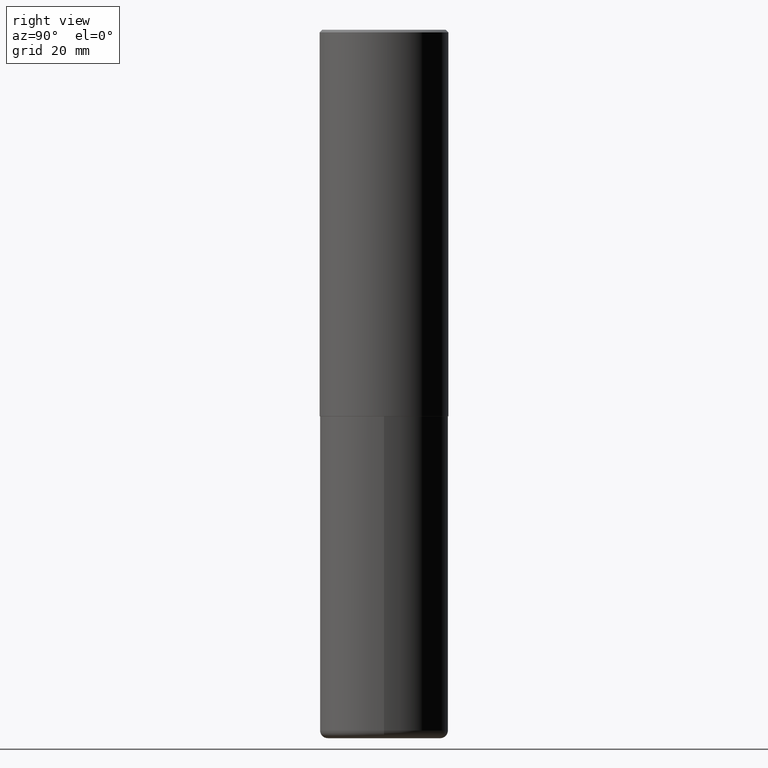
[diagram: clean part render]
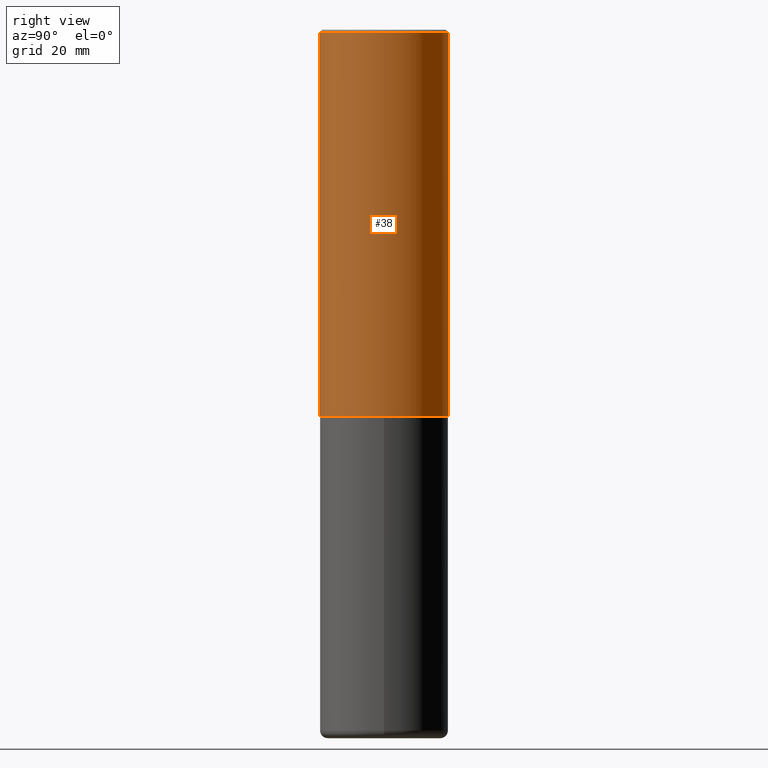
[diagram: same view with one face highlighted and labeled with its STEP entity id]
A machine part, right view. The second image highlights one B-rep face of the part: STEP entity #38.
In plain terms, the highlighted cylindrical surface (partial cylindrical patch) has radius 12.7 mm, axis along (-0, 0, 1).
Its self-contained STEP definition (entity closure, byte-faithful):
#3 = VERTEX_POINT ( 'NONE', #256 ) ;
#38 = ADVANCED_FACE ( 'NONE', ( #354 ), #390, .T. ) ;
#40 = EDGE_CURVE ( 'NONE', #222, #226, #84, .T. ) ;
#46 = DIRECTION ( 'NONE',  ( -2.446018302604025097E-29, 3.490694428695902798E-15, 1.000000000000000000 ) ) ;
#57 = CARTESIAN_POINT ( 'NONE',  ( 7.335608889509473609E-29, -1.046859259165901344E-14, -2.999000000000000554 ) ) ;
#80 = CARTESIAN_POINT ( 'NONE',  ( -3.491481338843061963E-15, -0.5000000000000107692, -2.998999999999998778 ) ) ;
#84 = LINE ( 'NONE', #271, #201 ) ;
#87 = DIRECTION ( 'NONE',  ( -2.446018302604025378E-29, 3.490694428695902798E-15, 1.000000000000000000 ) ) ;
#91 = CIRCLE ( 'NONE', #219, 0.5000000000000000000 ) ;
#101 = VERTEX_POINT ( 'NONE', #80 ) ;
#103 = CARTESIAN_POINT ( 'NONE',  ( 0.000000000000000000, 0.000000000000000000, 0.000000000000000000 ) ) ;
#118 = CARTESIAN_POINT ( 'NONE',  ( -3.491481338843133750E-15, -0.5000000000000001110, 1.745347214347951794E-15 ) ) ;
#129 = ORIENTED_EDGE ( 'NONE', *, *, #40, .T. ) ;
#136 = CIRCLE ( 'NONE', #257, 0.5000000000000003331 ) ;
#139 = EDGE_CURVE ( 'NONE', #3, #226, #91, .T. ) ;
#142 = CARTESIAN_POINT ( 'NONE',  ( 4.892036605208077240E-31, -6.981388857391842821E-17, -0.02000000000000010797 ) ) ;
#149 = LINE ( 'NONE', #118, #378 ) ;
#168 = EDGE_LOOP ( 'NONE', ( #262, #129, #194, #186 ) ) ;
#186 = ORIENTED_EDGE ( 'NONE', *, *, #211, .F. ) ;
#194 = ORIENTED_EDGE ( 'NONE', *, *, #139, .F. ) ;
#201 = VECTOR ( 'NONE', #46, 39.37007874015748143 ) ;
#211 = EDGE_CURVE ( 'NONE', #101, #3, #149, .T. ) ;
#212 = DIRECTION ( 'NONE',  ( -6.982962677686265922E-15, -1.000000000000000000, 3.491643216902136408E-15 ) ) ;
#219 = AXIS2_PLACEMENT_3D ( 'NONE', #142, #264, #212 ) ;
#222 = VERTEX_POINT ( 'NONE', #274 ) ;
#226 = VERTEX_POINT ( 'NONE', #315 ) ;
#230 = DIRECTION ( 'NONE',  ( -6.982962677686265922E-15, -1.000000000000000000, 3.490694428695902798E-15 ) ) ;
#244 = DIRECTION ( 'NONE',  ( -6.982962677686265922E-15, -1.000000000000000000, 3.278217592397113496E-15 ) ) ;
#256 = CARTESIAN_POINT ( 'NONE',  ( -3.430248998885764992E-15, -0.5000000000000001110, -0.01999999999999835937 ) ) ;
#257 = AXIS2_PLACEMENT_3D ( 'NONE', #57, #87, #244 ) ;
#262 = ORIENTED_EDGE ( 'NONE', *, *, #302, .T. ) ;
#264 = DIRECTION ( 'NONE',  ( -2.446018302604025378E-29, 3.490694428695902798E-15, 1.000000000000000000 ) ) ;
#271 = CARTESIAN_POINT ( 'NONE',  ( 3.552713678800501718E-15, 0.5000000000000001110, -1.745347214347951794E-15 ) ) ;
#274 = CARTESIAN_POINT ( 'NONE',  ( 3.552713678800539584E-15, 0.4999999999999898970, -2.999000000000001886 ) ) ;
#302 = EDGE_CURVE ( 'NONE', #101, #222, #136, .T. ) ;
#315 = CARTESIAN_POINT ( 'NONE',  ( 3.491481338843133355E-15, 0.4999999999999999445, -0.02000000000000185310 ) ) ;
#343 = DIRECTION ( 'NONE',  ( -2.446018302604025097E-29, 3.490694428695902798E-15, 1.000000000000000000 ) ) ;
#354 = FACE_OUTER_BOUND ( 'NONE', #168, .T. ) ;
#378 = VECTOR ( 'NONE', #343, 39.37007874015748143 ) ;
#385 = AXIS2_PLACEMENT_3D ( 'NONE', #103, #404, #230 ) ;
#390 = CYLINDRICAL_SURFACE ( 'NONE', #385, 0.5000000000000001110 ) ;
#404 = DIRECTION ( 'NONE',  ( -2.446018302604025378E-29, 3.490694428695902798E-15, 1.000000000000000000 ) ) ;